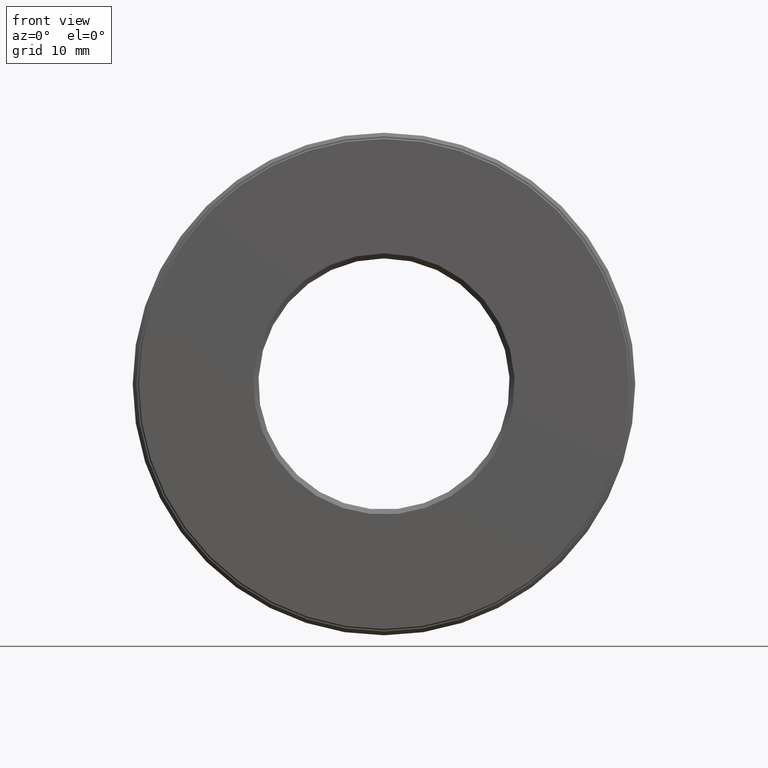
[diagram: clean part render]
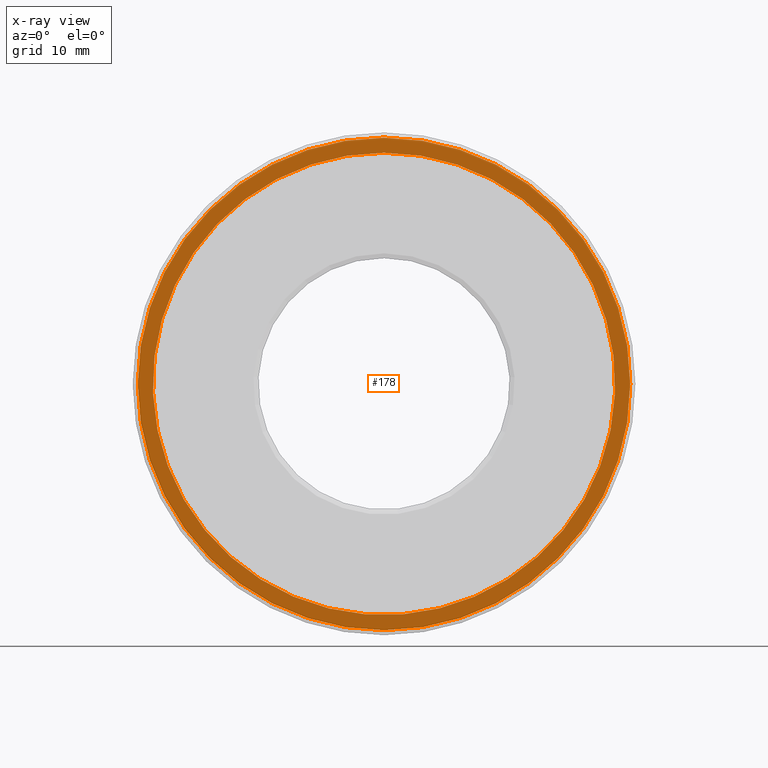
[diagram: x-ray — body ghosted, one internal face saturated and labeled with its STEP entity id]
A machine part, front view, then the same camera in x-ray: the body is ghosted and one INTERNAL B-rep face — a face not visible from any outside direction — is saturated and labeled: STEP entity #178.
In plain terms, the highlighted planar face has unit normal (-0, 1, 0).
Its self-contained STEP definition (entity closure, byte-faithful):
#15 = DIRECTION ( 'NONE',  ( 0.0000000000000000000, 0.0000000000000000000, 1.000000000000000000 ) ) ;
#54 = ORIENTED_EDGE ( 'NONE', *, *, #358, .F. ) ;
#55 = DIRECTION ( 'NONE',  ( -0.0000000000000000000, 1.000000000000000000, 0.0000000000000000000 ) ) ;
#73 = CIRCLE ( 'NONE', #473, 0.9799999999999999800 ) ;
#91 = ORIENTED_EDGE ( 'NONE', *, *, #339, .T. ) ;
#105 = CARTESIAN_POINT ( 'NONE',  ( 0.0000000000000000000, 0.6524999999999997500, 0.0000000000000000000 ) ) ;
#131 = EDGE_LOOP ( 'NONE', ( #91 ) ) ;
#135 = CIRCLE ( 'NONE', #146, 0.9200000000000000400 ) ;
#146 = AXIS2_PLACEMENT_3D ( 'NONE', #437, #297, #299 ) ;
#158 = FACE_BOUND ( 'NONE', #131, .T. ) ;
#166 = VERTEX_POINT ( 'NONE', #580 ) ;
#174 = AXIS2_PLACEMENT_3D ( 'NONE', #105, #55, #15 ) ;
#178 = ADVANCED_FACE ( 'NONE', ( #348, #158 ), #342, .F. ) ;
#210 = DIRECTION ( 'NONE',  ( -0.0000000000000000000, 1.000000000000000000, -0.0000000000000000000 ) ) ;
#257 = CARTESIAN_POINT ( 'NONE',  ( 0.0000000000000000000, 0.6524999999999997500, 0.9200000000000000400 ) ) ;
#297 = DIRECTION ( 'NONE',  ( -0.0000000000000000000, 1.000000000000000000, -0.0000000000000000000 ) ) ;
#299 = DIRECTION ( 'NONE',  ( 0.0000000000000000000, 0.0000000000000000000, 1.000000000000000000 ) ) ;
#339 = EDGE_CURVE ( 'NONE', #517, #517, #135, .T. ) ;
#342 = PLANE ( 'NONE',  #174 ) ;
#348 = FACE_OUTER_BOUND ( 'NONE', #468, .T. ) ;
#358 = EDGE_CURVE ( 'NONE', #166, #166, #73, .T. ) ;
#437 = CARTESIAN_POINT ( 'NONE',  ( 0.0000000000000000000, 0.6524999999999997500, 0.0000000000000000000 ) ) ;
#468 = EDGE_LOOP ( 'NONE', ( #54 ) ) ;
#473 = AXIS2_PLACEMENT_3D ( 'NONE', #529, #210, #532 ) ;
#517 = VERTEX_POINT ( 'NONE', #257 ) ;
#529 = CARTESIAN_POINT ( 'NONE',  ( 0.0000000000000000000, 0.6524999999999997500, 0.0000000000000000000 ) ) ;
#532 = DIRECTION ( 'NONE',  ( 0.0000000000000000000, 0.0000000000000000000, 1.000000000000000000 ) ) ;
#580 = CARTESIAN_POINT ( 'NONE',  ( 0.0000000000000000000, 0.6524999999999997500, 0.9799999999999999800 ) ) ;